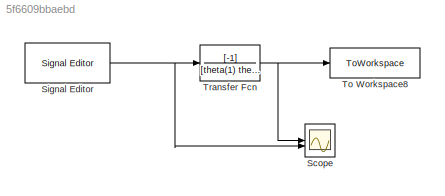
MODEL slx_5f6609bbaebd
KIND model
CONFIG AbsTol = auto
CONFIG EnableMultiTasking = off
CONFIG FixedStep = auto
CONFIG MaxStep = auto
CONFIG MinStep = auto
CONFIG RelTol = 1e-3
CONFIG SampleTimeConstraint = Unconstrained
CONFIG SolverName = VariableStepAuto
CONFIG StartTime = 0.0
CONFIG StopTime = time
BLOCK [Scope] Scope
  ActiveDisplayYMaximum = 0.74999999999999989
  ActiveDisplayYMinimum = -0.74999999999999989
  Floating = off
  GraphicalSettings = {"Style":{"BackgroundColor":[0.12941176470588237,0.12941176470588237,0.12941176470588237],"AxesColor":[0.07058823529411765,0.07058823529411765,0.07058823529411765],"LabelsColor":[0.8509803921568627,0.8509803921568627,0.8509803921568627],"PreserveColors":false,"Visible":[true,true],"LineStyle":["-","-"],"LineWidth":[1.5,1.5],"BarWidth":[0.9,0.9],"LineColor":["auto","auto"],"LineFaceAlpha":[1,1],"Li...<+2035ch>
  MultipleDisplayCache = [{"MaxYLimMag":0.74999999999999989,"MaxYLimReal":0.74999999999999989,"MinYLimMag":0,"MinYLimReal":-0.74999999999999989,"PlotAsMagnitudePhase":false,"ShowGrid":true,"ShowLegend":false,"Title":"%<SignalLabel>","YLabel":""}]
  NumInputPorts = 2
  SampleTime = 0.005
  ScopeFrameLocation = window
  WasSavedAsWebScope = on
  WindowPosition = [1029.000000,375.000000,560.000000,420.000000,]
BLOCK [Reference] Signal Editor  REF=SignalEditorBlockLib/Signal Editor
  LibrarySourceBlock = simulink/Sources/Signal Editor
  SourceBlock = SignalEditorBlockLib/Signal Editor
  SourceType = SignalEditor
  UserDataPersistent = on
BLOCK [ToWorkspace] To Workspace8
  FixptAsFi = on
  MaxDataPoints = inf
  SampleTime = 0.005
  VariableName = angle
BLOCK [TransferFcn] Transfer Fcn
  Denominator = [theta(1) theta(2) theta(3)]
  Numerator = [-1]
NET Signal Editor:1 -> Scope:2, Transfer Fcn:1
NET Transfer Fcn:1 -> Scope:1, To Workspace8:1
note: NET lines group one-source signal fan-out (src -> all destinations, sorted); 1:1 wires keep LINE
